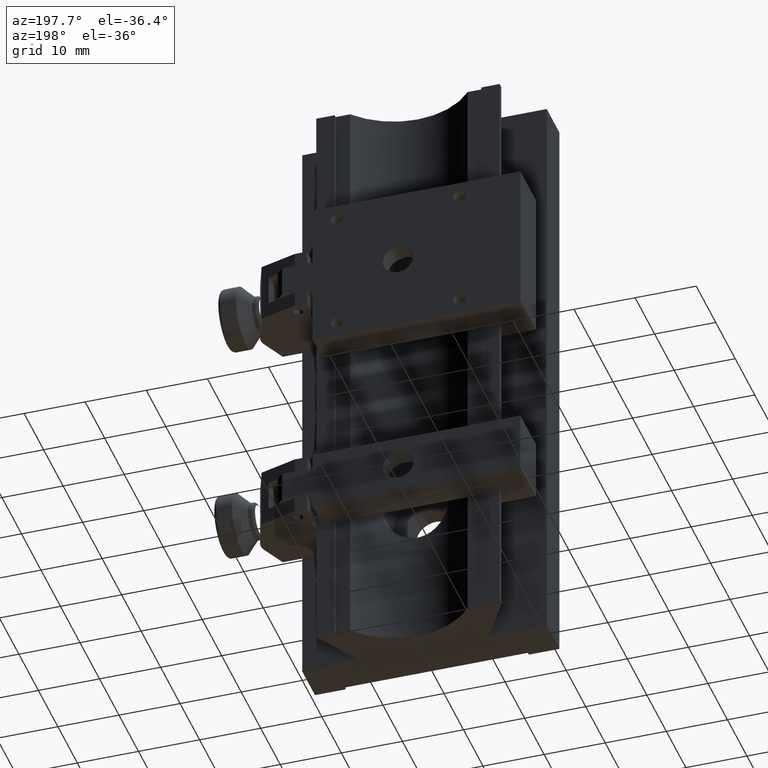
[diagram: clean part render]
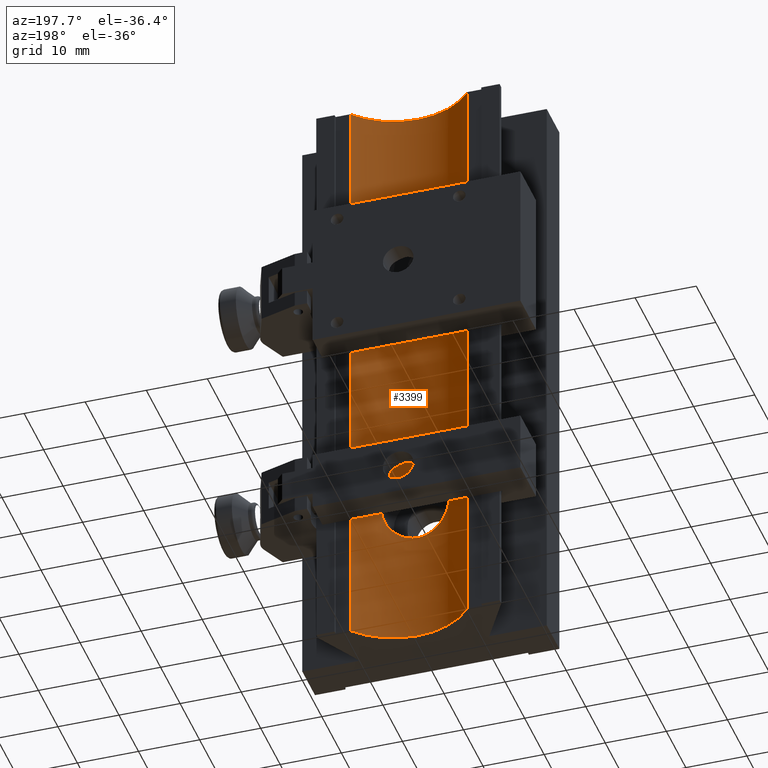
[diagram: same view with one face highlighted and labeled with its STEP entity id]
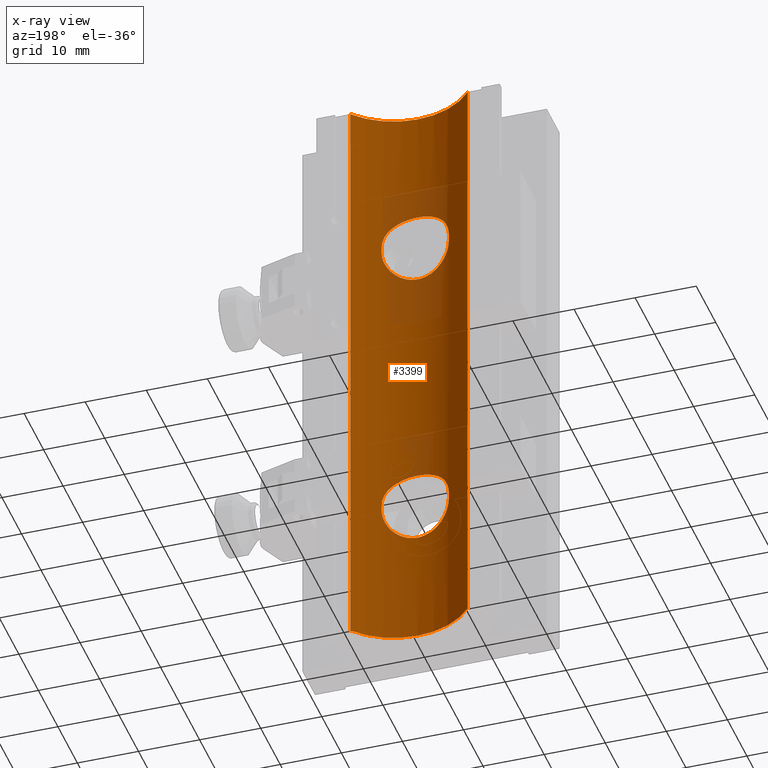
[diagram: x-ray of the same camera — body ghosted, the highlighted face saturated]
A machine part, auxiliary view. The second image highlights one B-rep face of the part: STEP entity #3399.
The next image is the same camera in x-ray: the body ghosted, the highlighted face saturated — about 10% of this face is hidden behind the body in this view.
In plain terms, the highlighted cylindrical surface (partial cylindrical patch) has radius 12.5 mm, axis along (-0, 0, -1).
Its self-contained STEP definition (entity closure, byte-faithful):
#72 = CARTESIAN_POINT ( 'NONE',  ( -3.638581638029508625, 4.038379994050425026, 29.63962776027644352 ) ) ;
#103 = CARTESIAN_POINT ( 'NONE',  ( -0.3589657864649583030, 3.503822942303211452, 30.99132986223215980 ) ) ;
#108 = DIRECTION ( 'NONE',  ( -0.000000000000000000, 0.000000000000000000, -1.000000000000000000 ) ) ;
#155 = B_SPLINE_CURVE_WITH_KNOTS ( 'NONE', 3,
 ( #2624, #627, #4771, #4720, #3468, #4261, #1467, #3442, #573, #3107, #2257, #275, #1923, #1492, #4317, #3911, #5087, #2730, #3495, #4748, #3131, #1896, #2283, #675, #227, #1002, #202, #1412, #5113, #1060, #2226, #3547, #3856, #650, #4289, #172, #601, #5189, #1814, #3050, #1435, #2654 ),
 .UNSPECIFIED., .F., .F.,
 ( 4, 2, 2, 2, 2, 2, 2, 2, 2, 2, 2, 2, 2, 2, 2, 2, 2, 2, 2, 2, 4 ),
 ( 0.000000000000000000, 0.001088223458269297218, 0.002176446916538594435, 0.003264670374807891219, 0.003808782103942534841, 0.004352893833077178462, 0.005441117291346471777, 0.006529340749615765091, 0.007073452478750410014, 0.007617564207885054069, 0.008705787666154344781, 0.009249899395288989704, 0.009794011124423634626, 0.01088223458269292274, 0.01197045804096221258, 0.01305868149923150243, 0.01414690495750079227, 0.01469101668663544066, 0.01523512841577008732, 0.01632335187403939625, 0.01741157533230869997 ),
 .UNSPECIFIED. ) ;
#157 = CARTESIAN_POINT ( 'NONE',  ( 1.960439013360201432, 3.653553443696079039, 30.64185918289807731 ) ) ;
#167 = DIRECTION ( 'NONE',  ( -0.000000000000000000, 0.000000000000000000, -1.000000000000000000 ) ) ;
#172 = CARTESIAN_POINT ( 'NONE',  ( 4.927301002126864837, 4.511737245493965709, 22.04974520197357535 ) ) ;
#186 = CARTESIAN_POINT ( 'NONE',  ( -0.7235754915566964263, 3.519625967096240426, 30.95527255045187331 ) ) ;
#202 = CARTESIAN_POINT ( 'NONE',  ( 1.783197991779767122, 3.623181025438775293, 19.28445996368880699 ) ) ;
#227 = CARTESIAN_POINT ( 'NONE',  ( 0.9034421561682072221, 3.531417676067726052, 19.07168773959777042 ) ) ;
#238 = CARTESIAN_POINT ( 'NONE',  ( -1.436019803944293960, 3.577646812477410343, -19.17844251871877859 ) ) ;
#275 = CARTESIAN_POINT ( 'NONE',  ( -3.640810629803838960, 4.039074654214517501, 20.36240765947393783 ) ) ;
#278 = EDGE_CURVE ( 'NONE', #648, #3293, #937, .T. ) ;
#288 = CARTESIAN_POINT ( 'NONE',  ( 4.015897234029105256, 4.161930955679303601, -20.73783805368037036 ) ) ;
#306 = ORIENTED_EDGE ( 'NONE', *, *, #5135, .F. ) ;
#309 = CARTESIAN_POINT ( 'NONE',  ( -1.791243918881801456, 3.627770058525934260, -30.70330787231333858 ) ) ;
#312 = CARTESIAN_POINT ( 'NONE',  ( 5.463371493397493950, 4.756877311680621112, -23.77044881776215846 ) ) ;
#360 = CARTESIAN_POINT ( 'NONE',  ( 3.359488323669842291, 3.956037097100741473, -29.86930765414052047 ) ) ;
#417 = VERTEX_POINT ( 'NONE', #1834 ) ;
#442 = EDGE_CURVE ( 'NONE', #2108, #4345, #5130, .T. ) ;
#504 = CARTESIAN_POINT ( 'NONE',  ( -5.004172744658501593, 4.545134261420410660, 27.78913355057161993 ) ) ;
#510 = CARTESIAN_POINT ( 'NONE',  ( 5.500000000000003553, 4.775027839678177344, 50.00000000000000000 ) ) ;
#557 = CARTESIAN_POINT ( 'NONE',  ( 3.365233826132079997, 3.957591329563105109, 29.86508588889130067 ) ) ;
#573 = CARTESIAN_POINT ( 'NONE',  ( -4.360951971730209209, 4.284773272989581550, 21.14384853326597735 ) ) ;
#586 = CARTESIAN_POINT ( 'NONE',  ( 5.463371493397493062, 4.756877311680621112, 26.22955118223783444 ) ) ;
#595 = EDGE_CURVE ( 'NONE', #1472, #3293, #5004, .T. ) ;
#601 = CARTESIAN_POINT ( 'NONE',  ( 5.004172744658499816, 4.545134261420410660, 22.21086644942838717 ) ) ;
#613 = CARTESIAN_POINT ( 'NONE',  ( -4.927301002126864837, 4.511737245493969262, -22.04974520197357890 ) ) ;
#627 = CARTESIAN_POINT ( 'NONE',  ( -5.499999999999999112, 4.775027839678173791, 24.13160073678131567 ) ) ;
#637 = CARTESIAN_POINT ( 'NONE',  ( 5.500000000000000000, 4.775027839678174679, -24.13160073678131567 ) ) ;
#648 = VERTEX_POINT ( 'NONE', #809 ) ;
#650 = CARTESIAN_POINT ( 'NONE',  ( 4.664130054569970874, 4.402269544413255353, 21.57975994278029575 ) ) ;
#660 = CARTESIAN_POINT ( 'NONE',  ( 1.960439013360197880, 3.653553443696079039, -19.35814081710192980 ) ) ;
#669 = AXIS2_PLACEMENT_3D ( 'NONE', #2530, #961, #2123 ) ;
#675 = CARTESIAN_POINT ( 'NONE',  ( 0.7235754915566973144, 3.519625967096240871, 19.04472744954814800 ) ) ;
#690 = CARTESIAN_POINT ( 'NONE',  ( -5.499999999999984013, 4.775027839678166686, 50.00000000000000000 ) ) ;
#698 = CARTESIAN_POINT ( 'NONE',  ( 5.499999999999998224, 4.775027839678173791, 24.50000000000000000 ) ) ;
#711 = CARTESIAN_POINT ( 'NONE',  ( 5.320886567516185828, 4.688748875783184999, -23.06165402701616429 ) ) ;
#731 = CARTESIAN_POINT ( 'NONE',  ( 5.463268972524252476, 4.756815190711169095, -26.23288512969653397 ) ) ;
#753 = VECTOR ( 'NONE', #1840, 1000.000000000000000 ) ;
#756 = CARTESIAN_POINT ( 'NONE',  ( 1.783197991779767344, 3.623181025438775293, -30.71554003631120011 ) ) ;
#809 = CARTESIAN_POINT ( 'NONE',  ( -9.604686356149272797, 7.999999999999998224, 50.00000000000000000 ) ) ;
#852 = DIRECTION ( 'NONE',  ( -0.000000000000000000, 0.000000000000000000, -1.000000000000000000 ) ) ;
#881 = CARTESIAN_POINT ( 'NONE',  ( -5.500000000000000000, 4.775027839678177344, 25.86853593480275748 ) ) ;
#903 = CARTESIAN_POINT ( 'NONE',  ( -5.211065515426132499, 4.637008669236494462, 27.29507806985633422 ) ) ;
#937 = LINE ( 'NONE', #4535, #5131 ) ;
#961 = DIRECTION ( 'NONE',  ( -0.000000000000000000, 0.000000000000000000, -1.000000000000000000 ) ) ;
#1002 = CARTESIAN_POINT ( 'NONE',  ( 1.436019803944290629, 3.577646812477411675, 19.17844251871877148 ) ) ;
#1017 = CARTESIAN_POINT ( 'NONE',  ( -3.359488323669839627, 3.956037097100740585, -20.13069234585947598 ) ) ;
#1045 = CARTESIAN_POINT ( 'NONE',  ( 4.468409719719221407, 4.325465594975087313, -21.28826126659803109 ) ) ;
#1060 = CARTESIAN_POINT ( 'NONE',  ( 3.359488323669842291, 3.956037097100741473, 20.13069234585948664 ) ) ;
#1089 = CARTESIAN_POINT ( 'NONE',  ( 5.211065515426132499, 4.637008669236493574, -27.29507806985633067 ) ) ;
#1093 = CARTESIAN_POINT ( 'NONE',  ( 4.935953207741839321, 4.514820086043212832, -22.04735380139051770 ) ) ;
#1112 = CARTESIAN_POINT ( 'NONE',  ( 5.004172744658500704, 4.545134261420409771, -27.78913355057161638 ) ) ;
#1136 = CARTESIAN_POINT ( 'NONE',  ( -4.360951971730208321, 4.284773272989580661, -28.85615146673403331 ) ) ;
#1158 = CARTESIAN_POINT ( 'NONE',  ( 3.638581638029509513, 4.038379994050421473, -29.63962776027644352 ) ) ;
#1189 = CARTESIAN_POINT ( 'NONE',  ( -4.767077514528522464, 4.442719698820008389, -28.26636520187405210 ) ) ;
#1215 = ORIENTED_EDGE ( 'NONE', *, *, #278, .F. ) ;
#1286 = CARTESIAN_POINT ( 'NONE',  ( 0.7318247305610905418, 3.516321624483725206, 30.96318792152190369 ) ) ;
#1314 = CARTESIAN_POINT ( 'NONE',  ( 4.134927261176861712, 4.203101428351041058, 29.13098214153897914 ) ) ;
#1371 = CARTESIAN_POINT ( 'NONE',  ( -3.359488323669839627, 3.956037097100741473, 29.86930765414053113 ) ) ;
#1398 = CARTESIAN_POINT ( 'NONE',  ( -0.1746818680405358426, 3.499893860054750672, 31.00024122732796883 ) ) ;
#1412 = CARTESIAN_POINT ( 'NONE',  ( 2.452909808896964527, 3.738324891094071845, 19.56391993402969121 ) ) ;
#1415 = ORIENTED_EDGE ( 'NONE', *, *, #595, .T. ) ;
#1435 = CARTESIAN_POINT ( 'NONE',  ( 5.499999999999998224, 4.775027839678175567, 24.13146406519726028 ) ) ;
#1467 = CARTESIAN_POINT ( 'NONE',  ( -4.767077514528522464, 4.442719698820008389, 21.73363479812595500 ) ) ;
#1472 = VERTEX_POINT ( 'NONE', #3988 ) ;
#1481 = CARTESIAN_POINT ( 'NONE',  ( -5.211065515426132499, 4.637008669236496239, -22.70492193014367643 ) ) ;
#1492 = CARTESIAN_POINT ( 'NONE',  ( -2.769513885777389994, 3.806797052175194818, 19.73464939816306085 ) ) ;
#1501 = CARTESIAN_POINT ( 'NONE',  ( 4.664130054569974426, 4.402269544413256241, -28.42024005721969715 ) ) ;
#1521 = CARTESIAN_POINT ( 'NONE',  ( 0.7235754915566967593, 3.519625967096240426, -30.95527255045186266 ) ) ;
#1525 = CARTESIAN_POINT ( 'NONE',  ( -5.463268972524252476, 4.756815190711169095, -23.76711487030347314 ) ) ;
#1546 = CARTESIAN_POINT ( 'NONE',  ( -2.769513885777390438, 3.806797052175196594, -30.26535060183694981 ) ) ;
#1569 = CARTESIAN_POINT ( 'NONE',  ( -2.455686713790327769, 3.739010744038294476, -30.43434399805540380 ) ) ;
#1592 = CARTESIAN_POINT ( 'NONE',  ( -1.960439013360200988, 3.653553443696078151, -30.64185918289807375 ) ) ;
#1713 = ORIENTED_EDGE ( 'NONE', *, *, #2633, .F. ) ;
#1715 = FACE_OUTER_BOUND ( 'NONE', #1759, .T. ) ;
#1744 = CARTESIAN_POINT ( 'NONE',  ( 3.640810629803843401, 4.039074654214519278, 29.63759234052605862 ) ) ;
#1759 = EDGE_LOOP ( 'NONE', ( #3986, #1415, #1215, #306 ) ) ;
#1773 = CARTESIAN_POINT ( 'NONE',  ( 2.769513885777389550, 3.806797052175195706, 30.26535060183694270 ) ) ;
#1801 = CARTESIAN_POINT ( 'NONE',  ( 1.444167463114246708, 3.582471709711287033, 30.81011750618489131 ) ) ;
#1804 = B_SPLINE_CURVE_WITH_KNOTS ( 'NONE', 3,
 ( #4220, #3753, #586, #4990, #3870, #4245, #4562, #3785, #4273, #1314, #4187, #1744, #557, #1773, #3841, #157, #5042, #1801, #3377, #1286, #2586, #1398, #103, #186, #4586, #2954, #2927, #2638, #3402, #1371, #72, #2979, #1830, #2152, #4616, #4645, #504, #903, #2555, #4963, #881, #5016 ),
 .UNSPECIFIED., .F., .F.,
 ( 4, 2, 2, 2, 2, 2, 2, 2, 2, 2, 2, 2, 2, 2, 2, 2, 2, 2, 2, 2, 4 ),
 ( 0.000000000000000000, 0.001088223458269308493, 0.002176446916538616987, 0.003264670374807925480, 0.003808782103942574739, 0.004352893833077224432, 0.005441117291346515145, 0.006529340749615806724, 0.007073452478750452514, 0.007617564207885097437, 0.008705787666154388149, 0.009249899395289033072, 0.009794011124423677994, 0.01088223458269296784, 0.01197045804096225768, 0.01305868149923154753, 0.01414690495750083737, 0.01469101668663547883, 0.01523512841577011681, 0.01632335187403940666, 0.01741157533230869650 ),
 .UNSPECIFIED. ) ;
#1814 = CARTESIAN_POINT ( 'NONE',  ( 5.317647263843143790, 4.687213424654787630, 23.04842979611111886 ) ) ;
#1830 = CARTESIAN_POINT ( 'NONE',  ( -4.365141366191278571, 4.284993196813135619, 28.86499412839005174 ) ) ;
#1834 = CARTESIAN_POINT ( 'NONE',  ( 9.604686356149276349, 8.000000000000001776, 50.00000000000000000 ) ) ;
#1840 = DIRECTION ( 'NONE',  ( -0.000000000000000000, 0.000000000000000000, -1.000000000000000000 ) ) ;
#1855 = CARTESIAN_POINT ( 'NONE',  ( -5.004172744658499816, 4.545134261420411548, -22.21086644942838362 ) ) ;
#1857 = VECTOR ( 'NONE', #108, 1000.000000000000000 ) ;
#1886 = CARTESIAN_POINT ( 'NONE',  ( -4.365141366191279459, 4.284993196813132954, -21.13500587160995181 ) ) ;
#1892 = DIRECTION ( 'NONE',  ( -0.000000000000000000, 0.000000000000000000, -1.000000000000000000 ) ) ;
#1896 = CARTESIAN_POINT ( 'NONE',  ( 0.1746818680405369528, 3.499893860054751560, 18.99975877267203472 ) ) ;
#1911 = CARTESIAN_POINT ( 'NONE',  ( 1.791243918881799457, 3.627770058525935148, -19.29669212768666497 ) ) ;
#1923 = CARTESIAN_POINT ( 'NONE',  ( -3.365233826132080885, 3.957591329563105109, 20.13491411110870999 ) ) ;
#1952 = CARTESIAN_POINT ( 'NONE',  ( 0.1746818680405355095, 3.499893860054750228, -31.00024122732797238 ) ) ;
#1981 = CARTESIAN_POINT ( 'NONE',  ( 2.452909808896963639, 3.738324891094071845, -30.43608006597031590 ) ) ;
#2006 = CARTESIAN_POINT ( 'NONE',  ( 4.140132957479336184, 4.202588055097333353, -29.13800679282629602 ) ) ;
#2013 = VERTEX_POINT ( 'NONE', #2691 ) ;
#2108 = VERTEX_POINT ( 'NONE', #2636 ) ;
#2123 = DIRECTION ( 'NONE',  ( 0.000000000000000000, 1.000000000000000000, 0.000000000000000000 ) ) ;
#2147 = EDGE_CURVE ( 'NONE', #2259, #4345, #4186, .T. ) ;
#2152 = CARTESIAN_POINT ( 'NONE',  ( -4.664130054569974426, 4.402269544413259794, 28.42024005721970070 ) ) ;
#2226 = CARTESIAN_POINT ( 'NONE',  ( 3.638581638029510845, 4.038379994050422361, 20.36037223972356713 ) ) ;
#2246 = DIRECTION ( 'NONE',  ( -0.000000000000000000, 0.000000000000000000, -1.000000000000000000 ) ) ;
#2257 = CARTESIAN_POINT ( 'NONE',  ( -4.015897234029105256, 4.161930955679303601, 20.73783805368036681 ) ) ;
#2259 = VERTEX_POINT ( 'NONE', #2490 ) ;
#2267 = AXIS2_PLACEMENT_3D ( 'NONE', #3071, #167, #4682 ) ;
#2272 = CARTESIAN_POINT ( 'NONE',  ( -0.9034421561682106638, 3.531417676067726052, -19.07168773959777397 ) ) ;
#2283 = CARTESIAN_POINT ( 'NONE',  ( 0.3589657864649593577, 3.503822942303210564, 19.00867013776785086 ) ) ;
#2292 = CARTESIAN_POINT ( 'NONE',  ( 0.7318247305610874331, 3.516321624483725650, -19.03681207847808921 ) ) ;
#2319 = CARTESIAN_POINT ( 'NONE',  ( -0.1746818680405375634, 3.499893860054749783, -18.99975877267203117 ) ) ;
#2334 = ORIENTED_EDGE ( 'NONE', *, *, #2147, .T. ) ;
#2337 = CARTESIAN_POINT ( 'NONE',  ( -4.468409719719221407, 4.325465594975087313, -28.71173873340199023 ) ) ;
#2343 = CIRCLE ( 'NONE', #2267, 12.50000000000000000 ) ;
#2359 = CARTESIAN_POINT ( 'NONE',  ( 5.499999999999999112, 4.775027839678175567, -25.50000000000000355 ) ) ;
#2364 = CARTESIAN_POINT ( 'NONE',  ( 4.360951971730209209, 4.284773272989581550, -21.14384853326597735 ) ) ;
#2384 = CARTESIAN_POINT ( 'NONE',  ( -5.320886567516184051, 4.688748875783183223, -26.93834597298383571 ) ) ;
#2438 = DIRECTION ( 'NONE',  ( 0.000000000000000000, -1.000000000000000000, 0.000000000000000000 ) ) ;
#2441 = B_SPLINE_CURVE_WITH_KNOTS ( 'NONE', 3,
 ( #3512, #637, #312, #711, #2765, #1093, #3455, #1045, #2364, #3993, #288, #3971, #3560, #5098, #3898, #660, #1911, #5202, #5156, #2292, #4304, #2319, #3480, #4329, #2272, #238, #3539, #3063, #4705, #1017, #2742, #3092, #1886, #2670, #3166, #613, #1855, #1481, #4761, #1525, #5125, #4806 ),
 .UNSPECIFIED., .F., .F.,
 ( 4, 2, 2, 2, 2, 2, 2, 2, 2, 2, 2, 2, 2, 2, 2, 2, 2, 2, 2, 2, 4 ),
 ( 0.000000000000000000, 0.001088223458269302639, 0.002176446916538605277, 0.003264670374807908133, 0.003808782103942554790, 0.004352893833077201013, 0.005441117291346499532, 0.006529340749615798051, 0.007073452478750446443, 0.007617564207885093967, 0.008705787666154388149, 0.009249899395289034806, 0.009794011124423684933, 0.01088223458269297825, 0.01197045804096227330, 0.01305868149923156835, 0.01414690495750086340, 0.01469101668663550485, 0.01523512841577014804, 0.01632335187403942400, 0.01741157533230869997 ),
 .UNSPECIFIED. ) ;
#2471 = FACE_BOUND ( 'NONE', #3393, .T. ) ;
#2490 = CARTESIAN_POINT ( 'NONE',  ( -5.499999999999998224, 4.775027839678173791, -25.50000000000000355 ) ) ;
#2517 = ORIENTED_EDGE ( 'NONE', *, *, #4819, .T. ) ;
#2530 = CARTESIAN_POINT ( 'NONE',  ( -2.407148620655123076E-16, 16.00000000000000000, 50.00000000000000000 ) ) ;
#2555 = CARTESIAN_POINT ( 'NONE',  ( -5.317647263843144678, 4.687213424654789407, 26.95157020388888469 ) ) ;
#2586 = CARTESIAN_POINT ( 'NONE',  ( 0.3716744979042014840, 3.500218916825643678, 30.99950246139496102 ) ) ;
#2608 = CARTESIAN_POINT ( 'NONE',  ( 5.499999999999999112, 4.775027839678175567, 25.50000000000000355 ) ) ;
#2624 = CARTESIAN_POINT ( 'NONE',  ( -5.499999999999998224, 4.775027839678173791, 24.50000000000000000 ) ) ;
#2633 = EDGE_CURVE ( 'NONE', #4576, #4922, #4652, .T. ) ;
#2636 = CARTESIAN_POINT ( 'NONE',  ( 5.499999999999999112, 4.775027839678175567, -24.50000000000000000 ) ) ;
#2638 = CARTESIAN_POINT ( 'NONE',  ( -2.452909808896963195, 3.738324891094071400, 30.43608006597032301 ) ) ;
#2654 = CARTESIAN_POINT ( 'NONE',  ( 5.499999999999998224, 4.775027839678173791, 24.50000000000000000 ) ) ;
#2670 = CARTESIAN_POINT ( 'NONE',  ( -4.664130054569973538, 4.402269544413257130, -21.57975994278030640 ) ) ;
#2691 = CARTESIAN_POINT ( 'NONE',  ( -5.499999999999998224, 4.775027839678173791, -24.50000000000000000 ) ) ;
#2730 = CARTESIAN_POINT ( 'NONE',  ( -1.444167463114245820, 3.582471709711285257, 19.18988249381511935 ) ) ;
#2742 = CARTESIAN_POINT ( 'NONE',  ( -3.638581638029509513, 4.038379994050425026, -20.36037223972356358 ) ) ;
#2765 = CARTESIAN_POINT ( 'NONE',  ( 5.213099869976741907, 4.637932341751265675, -22.71039188920618557 ) ) ;
#2783 = CARTESIAN_POINT ( 'NONE',  ( 4.757545737347821380, 4.440405074606874614, -28.26546601820661309 ) ) ;
#2845 = EDGE_CURVE ( 'NONE', #1472, #417, #4058, .T. ) ;
#2872 = VECTOR ( 'NONE', #4140, 1000.000000000000000 ) ;
#2927 = CARTESIAN_POINT ( 'NONE',  ( -1.783197991779766012, 3.623181025438774849, 30.71554003631120011 ) ) ;
#2954 = CARTESIAN_POINT ( 'NONE',  ( -1.436019803944291517, 3.577646812477409899, 30.82155748128122852 ) ) ;
#2979 = CARTESIAN_POINT ( 'NONE',  ( -4.140132957479336184, 4.202588055097336905, 29.13800679282629957 ) ) ;
#3049 = ORIENTED_EDGE ( 'NONE', *, *, #3404, .T. ) ;
#3050 = CARTESIAN_POINT ( 'NONE',  ( 5.463268972524252476, 4.756815190711167318, 23.76711487030346959 ) ) ;
#3063 = CARTESIAN_POINT ( 'NONE',  ( -2.452909808896967192, 3.738324891094073177, -19.56391993402969121 ) ) ;
#3068 = ORIENTED_EDGE ( 'NONE', *, *, #3173, .T. ) ;
#3071 = CARTESIAN_POINT ( 'NONE',  ( -2.407148620655123076E-16, 16.00000000000000000, 50.00000000000000000 ) ) ;
#3089 = CARTESIAN_POINT ( 'NONE',  ( -5.499999999999998224, 4.775027839678173791, -25.50000000000000355 ) ) ;
#3092 = CARTESIAN_POINT ( 'NONE',  ( -4.140132957479336184, 4.202588055097337794, -20.86199320717370753 ) ) ;
#3107 = CARTESIAN_POINT ( 'NONE',  ( -4.134927261176860824, 4.203101428351041946, 20.86901785846101376 ) ) ;
#3131 = CARTESIAN_POINT ( 'NONE',  ( -0.3716744979042007069, 3.500218916825643678, 19.00049753860503543 ) ) ;
#3139 = CARTESIAN_POINT ( 'NONE',  ( -5.499999999999998224, 4.775027839678173791, -25.86839926321869854 ) ) ;
#3160 = CARTESIAN_POINT ( 'NONE',  ( 5.317647263843144678, 4.687213424654789407, -26.95157020388889180 ) ) ;
#3166 = CARTESIAN_POINT ( 'NONE',  ( -4.757545737347821380, 4.440405074606873725, -21.73453398179339757 ) ) ;
#3173 = EDGE_CURVE ( 'NONE', #2013, #2259, #4767, .T. ) ;
#3184 = CARTESIAN_POINT ( 'NONE',  ( 1.436019803944290851, 3.577646812477410787, -30.82155748128122497 ) ) ;
#3208 = CARTESIAN_POINT ( 'NONE',  ( -5.213099869976741019, 4.637932341751264786, -27.28960811079381443 ) ) ;
#3215 = CARTESIAN_POINT ( 'NONE',  ( 5.499999999999999112, 4.775027839678175567, -25.50000000000000355 ) ) ;
#3225 = EDGE_LOOP ( 'NONE', ( #1713, #3049, #4950, #2517 ) ) ;
#3228 = CARTESIAN_POINT ( 'NONE',  ( -5.463371493397493950, 4.756877311680621112, -26.22955118223783799 ) ) ;
#3293 = VERTEX_POINT ( 'NONE', #4022 ) ;
#3351 = CYLINDRICAL_SURFACE ( 'NONE', #669, 12.50000000000000000 ) ;
#3377 = CARTESIAN_POINT ( 'NONE',  ( 1.266012518167692003, 3.562992296828747740, 30.85539071678002898 ) ) ;
#3388 = LINE ( 'NONE', #3853, #753 ) ;
#3393 = EDGE_LOOP ( 'NONE', ( #3068, #2334, #3689, #4895 ) ) ;
#3399 = ADVANCED_FACE ( 'NONE', ( #2471, #5071, #1715 ), #3351, .F. ) ;
#3402 = CARTESIAN_POINT ( 'NONE',  ( -2.767522286145573052, 3.806394110068379355, 30.26632264634829284 ) ) ;
#3404 = EDGE_CURVE ( 'NONE', #4576, #3777, #1804, .T. ) ;
#3442 = CARTESIAN_POINT ( 'NONE',  ( -4.468409719719221407, 4.325465594975086425, 21.28826126659802753 ) ) ;
#3455 = CARTESIAN_POINT ( 'NONE',  ( 4.767077514528521576, 4.442719698820007501, -21.73363479812595145 ) ) ;
#3467 = EDGE_CURVE ( 'NONE', #2108, #2013, #2441, .T. ) ;
#3468 = CARTESIAN_POINT ( 'NONE',  ( -5.213099869976741907, 4.637932341751265675, 22.71039188920618912 ) ) ;
#3480 = CARTESIAN_POINT ( 'NONE',  ( -0.3589657864649608010, 3.503822942303211008, -19.00867013776785086 ) ) ;
#3495 = CARTESIAN_POINT ( 'NONE',  ( -1.266012518167690226, 3.562992296828745964, 19.14460928321997812 ) ) ;
#3512 = CARTESIAN_POINT ( 'NONE',  ( 5.499999999999999112, 4.775027839678175567, -24.50000000000000000 ) ) ;
#3539 = CARTESIAN_POINT ( 'NONE',  ( -1.783197991779770231, 3.623181025438776182, -19.28445996368880699 ) ) ;
#3547 = CARTESIAN_POINT ( 'NONE',  ( 4.140132957479338849, 4.202588055097336017, 20.86199320717371108 ) ) ;
#3556 = CARTESIAN_POINT ( 'NONE',  ( -4.015897234029106144, 4.161930955679303601, -29.26216194631963319 ) ) ;
#3560 = CARTESIAN_POINT ( 'NONE',  ( 3.365233826132079997, 3.957591329563104221, -20.13491411110870644 ) ) ;
#3581 = CARTESIAN_POINT ( 'NONE',  ( -0.3716744979042014840, 3.500218916825643678, -30.99950246139496102 ) ) ;
#3647 = CARTESIAN_POINT ( 'NONE',  ( 9.604686356149276349, 8.000000000000001776, 50.00000000000000000 ) ) ;
#3689 = ORIENTED_EDGE ( 'NONE', *, *, #442, .F. ) ;
#3753 = CARTESIAN_POINT ( 'NONE',  ( 5.499999999999998224, 4.775027839678173791, 25.86839926321869854 ) ) ;
#3777 = VERTEX_POINT ( 'NONE', #4407 ) ;
#3783 = VERTEX_POINT ( 'NONE', #3865 ) ;
#3785 = CARTESIAN_POINT ( 'NONE',  ( 4.468409719719221407, 4.325465594975087313, 28.71173873340199023 ) ) ;
#3808 = AXIS2_PLACEMENT_3D ( 'NONE', #4550, #4954, #2438 ) ;
#3841 = CARTESIAN_POINT ( 'NONE',  ( 2.455686713790328213, 3.739010744038294032, 30.43434399805540025 ) ) ;
#3853 = CARTESIAN_POINT ( 'NONE',  ( -5.499999999999993783, 4.775027839678172015, 50.00000000000000000 ) ) ;
#3856 = CARTESIAN_POINT ( 'NONE',  ( 4.365141366191277683, 4.284993196813133842, 21.13500587160995536 ) ) ;
#3865 = CARTESIAN_POINT ( 'NONE',  ( -5.499999999999998224, 4.775027839678173791, 24.50000000000000000 ) ) ;
#3870 = CARTESIAN_POINT ( 'NONE',  ( 5.213099869976741907, 4.637932341751265675, 27.28960811079382154 ) ) ;
#3898 = CARTESIAN_POINT ( 'NONE',  ( 2.455686713790325104, 3.739010744038295808, -19.56565600194459265 ) ) ;
#3902 = CARTESIAN_POINT ( 'NONE',  ( 5.500000000000012434, 4.775027839678180896, 50.00000000000000000 ) ) ;
#3911 = CARTESIAN_POINT ( 'NONE',  ( -1.960439013360197880, 3.653553443696079039, 19.35814081710192980 ) ) ;
#3967 = CARTESIAN_POINT ( 'NONE',  ( -3.365233826132080441, 3.957591329563105109, -29.86508588889130067 ) ) ;
#3971 = CARTESIAN_POINT ( 'NONE',  ( 3.640810629803839849, 4.039074654214518389, -20.36240765947394138 ) ) ;
#3986 = ORIENTED_EDGE ( 'NONE', *, *, #2845, .F. ) ;
#3987 = VECTOR ( 'NONE', #1892, 1000.000000000000000 ) ;
#3988 = CARTESIAN_POINT ( 'NONE',  ( 9.604686356149276349, 8.000000000000001776, -50.00000000000000000 ) ) ;
#3989 = CARTESIAN_POINT ( 'NONE',  ( -4.134927261176861712, 4.203101428351041058, -29.13098214153898979 ) ) ;
#3993 = CARTESIAN_POINT ( 'NONE',  ( 4.134927261176861712, 4.203101428351042834, -20.86901785846102086 ) ) ;
#4014 = CARTESIAN_POINT ( 'NONE',  ( -1.266012518167691114, 3.562992296828745520, -30.85539071678002188 ) ) ;
#4022 = CARTESIAN_POINT ( 'NONE',  ( -9.604686356149272797, 7.999999999999998224, -50.00000000000000000 ) ) ;
#4040 = CARTESIAN_POINT ( 'NONE',  ( 2.767522286145575716, 3.806394110068378911, -30.26632264634828573 ) ) ;
#4058 = LINE ( 'NONE', #3647, #2872 ) ;
#4081 = EDGE_CURVE ( 'NONE', #3777, #3783, #3388, .T. ) ;
#4140 = DIRECTION ( 'NONE',  ( 0.000000000000000000, -0.000000000000000000, 1.000000000000000000 ) ) ;
#4186 = B_SPLINE_CURVE_WITH_KNOTS ( 'NONE', 3,
 ( #3089, #3139, #3228, #2384, #3208, #4849, #1189, #2337, #1136, #3989, #3556, #5249, #3967, #1546, #1569, #1592, #309, #5225, #4014, #4782, #3581, #1952, #4469, #1521, #4392, #3184, #756, #1981, #4040, #360, #1158, #2006, #4828, #1501, #2783, #4413, #1112, #1089, #3160, #731, #4803, #2359 ),
 .UNSPECIFIED., .F., .F.,
 ( 4, 2, 2, 2, 2, 2, 2, 2, 2, 2, 2, 2, 2, 2, 2, 2, 2, 2, 2, 2, 4 ),
 ( 0.000000000000000000, 0.001088223458269308276, 0.002176446916538616553, 0.003264670374807925046, 0.003808782103942574306, 0.004352893833077223565, 0.005441117291346514277, 0.006529340749615804990, 0.007073452478750450780, 0.007617564207885096569, 0.008705787666154384680, 0.009249899395289031337, 0.009794011124423676259, 0.01088223458269296437, 0.01197045804096225421, 0.01305868149923154406, 0.01414690495750083564, 0.01469101668663547536, 0.01523512841577011681, 0.01632335187403940666, 0.01741157533230869650 ),
 .UNSPECIFIED. ) ;
#4187 = CARTESIAN_POINT ( 'NONE',  ( 4.015897234029106144, 4.161930955679304489, 29.26216194631963674 ) ) ;
#4220 = CARTESIAN_POINT ( 'NONE',  ( 5.499999999999999112, 4.775027839678175567, 25.50000000000000355 ) ) ;
#4245 = CARTESIAN_POINT ( 'NONE',  ( 4.935953207741839321, 4.514820086043211944, 27.95264619860948585 ) ) ;
#4261 = CARTESIAN_POINT ( 'NONE',  ( -4.935953207741839321, 4.514820086043211944, 22.04735380139051415 ) ) ;
#4273 = CARTESIAN_POINT ( 'NONE',  ( 4.360951971730208321, 4.284773272989580661, 28.85615146673403331 ) ) ;
#4289 = CARTESIAN_POINT ( 'NONE',  ( 4.757545737347819603, 4.440405074606872837, 21.73453398179339402 ) ) ;
#4304 = CARTESIAN_POINT ( 'NONE',  ( 0.3716744979041987640, 3.500218916825642790, -19.00049753860503188 ) ) ;
#4317 = CARTESIAN_POINT ( 'NONE',  ( -2.455686713790324216, 3.739010744038294032, 19.56565600194458199 ) ) ;
#4329 = CARTESIAN_POINT ( 'NONE',  ( -0.7235754915566975365, 3.519625967096238206, -19.04472744954814090 ) ) ;
#4345 = VERTEX_POINT ( 'NONE', #3215 ) ;
#4392 = CARTESIAN_POINT ( 'NONE',  ( 0.9034421561682072221, 3.531417676067726497, -30.92831226040224379 ) ) ;
#4407 = CARTESIAN_POINT ( 'NONE',  ( -5.499999999999998224, 4.775027839678173791, 25.50000000000000355 ) ) ;
#4413 = CARTESIAN_POINT ( 'NONE',  ( 4.927301002126865725, 4.511737245493971038, -27.95025479802643176 ) ) ;
#4469 = CARTESIAN_POINT ( 'NONE',  ( 0.3589657864649591357, 3.503822942303210564, -30.99132986223215624 ) ) ;
#4535 = CARTESIAN_POINT ( 'NONE',  ( -9.604686356149272797, 7.999999999999998224, 50.00000000000000000 ) ) ;
#4550 = CARTESIAN_POINT ( 'NONE',  ( -2.407148620655123076E-16, 16.00000000000000000, -50.00000000000000000 ) ) ;
#4562 = CARTESIAN_POINT ( 'NONE',  ( 4.767077514528521576, 4.442719698820007501, 28.26636520187405210 ) ) ;
#4576 = VERTEX_POINT ( 'NONE', #2608 ) ;
#4586 = CARTESIAN_POINT ( 'NONE',  ( -0.9034421561682065560, 3.531417676067723832, 30.92831226040224379 ) ) ;
#4616 = CARTESIAN_POINT ( 'NONE',  ( -4.757545737347823156, 4.440405074606872837, 28.26546601820660243 ) ) ;
#4645 = CARTESIAN_POINT ( 'NONE',  ( -4.927301002126866614, 4.511737245493968373, 27.95025479802642465 ) ) ;
#4652 = LINE ( 'NONE', #510, #1857 ) ;
#4682 = DIRECTION ( 'NONE',  ( 0.000000000000000000, -1.000000000000000000, 0.000000000000000000 ) ) ;
#4705 = CARTESIAN_POINT ( 'NONE',  ( -2.767522286145575272, 3.806394110068379355, -19.73367735365172138 ) ) ;
#4720 = CARTESIAN_POINT ( 'NONE',  ( -5.320886567516186716, 4.688748875783185888, 23.06165402701616074 ) ) ;
#4748 = CARTESIAN_POINT ( 'NONE',  ( -0.7318247305610876552, 3.516321624483726094, 19.03681207847809276 ) ) ;
#4761 = CARTESIAN_POINT ( 'NONE',  ( -5.317647263843143790, 4.687213424654788518, -23.04842979611111886 ) ) ;
#4767 = LINE ( 'NONE', #690, #3987 ) ;
#4771 = CARTESIAN_POINT ( 'NONE',  ( -5.463371493397494838, 4.756877311680621112, 23.77044881776215490 ) ) ;
#4782 = CARTESIAN_POINT ( 'NONE',  ( -0.7318247305610905418, 3.516321624483725650, -30.96318792152191079 ) ) ;
#4803 = CARTESIAN_POINT ( 'NONE',  ( 5.500000000000000000, 4.775027839678174679, -25.86853593480275748 ) ) ;
#4806 = CARTESIAN_POINT ( 'NONE',  ( -5.499999999999998224, 4.775027839678173791, -24.50000000000000000 ) ) ;
#4819 = EDGE_CURVE ( 'NONE', #3783, #4922, #155, .T. ) ;
#4828 = CARTESIAN_POINT ( 'NONE',  ( 4.365141366191279459, 4.284993196813132954, -28.86499412839005174 ) ) ;
#4849 = CARTESIAN_POINT ( 'NONE',  ( -4.935953207741839321, 4.514820086043211944, -27.95264619860948585 ) ) ;
#4875 = VECTOR ( 'NONE', #2246, 1000.000000000000000 ) ;
#4895 = ORIENTED_EDGE ( 'NONE', *, *, #3467, .T. ) ;
#4922 = VERTEX_POINT ( 'NONE', #698 ) ;
#4950 = ORIENTED_EDGE ( 'NONE', *, *, #4081, .T. ) ;
#4954 = DIRECTION ( 'NONE',  ( -0.000000000000000000, 0.000000000000000000, -1.000000000000000000 ) ) ;
#4963 = CARTESIAN_POINT ( 'NONE',  ( -5.463268972524252476, 4.756815190711169983, 26.23288512969653397 ) ) ;
#4990 = CARTESIAN_POINT ( 'NONE',  ( 5.320886567516184940, 4.688748875783184999, 26.93834597298383926 ) ) ;
#5004 = CIRCLE ( 'NONE', #3808, 12.50000000000000000 ) ;
#5016 = CARTESIAN_POINT ( 'NONE',  ( -5.499999999999998224, 4.775027839678173791, 25.50000000000000355 ) ) ;
#5042 = CARTESIAN_POINT ( 'NONE',  ( 1.791243918881801234, 3.627770058525934704, 30.70330787231333858 ) ) ;
#5071 = FACE_BOUND ( 'NONE', #3225, .T. ) ;
#5087 = CARTESIAN_POINT ( 'NONE',  ( -1.791243918881800123, 3.627770058525933816, 19.29669212768666497 ) ) ;
#5098 = CARTESIAN_POINT ( 'NONE',  ( 2.769513885777390438, 3.806797052175195706, -19.73464939816306085 ) ) ;
#5113 = CARTESIAN_POINT ( 'NONE',  ( 2.767522286145575272, 3.806394110068379799, 19.73367735365172493 ) ) ;
#5125 = CARTESIAN_POINT ( 'NONE',  ( -5.499999999999998224, 4.775027839678174679, -24.13146406519726384 ) ) ;
#5130 = LINE ( 'NONE', #3902, #4875 ) ;
#5131 = VECTOR ( 'NONE', #852, 1000.000000000000000 ) ;
#5135 = EDGE_CURVE ( 'NONE', #417, #648, #2343, .T. ) ;
#5156 = CARTESIAN_POINT ( 'NONE',  ( 1.266012518167690448, 3.562992296828746852, -19.14460928321998168 ) ) ;
#5189 = CARTESIAN_POINT ( 'NONE',  ( 5.211065515426133388, 4.637008669236495351, 22.70492193014367643 ) ) ;
#5202 = CARTESIAN_POINT ( 'NONE',  ( 1.444167463114244931, 3.582471709711285257, -19.18988249381511935 ) ) ;
#5225 = CARTESIAN_POINT ( 'NONE',  ( -1.444167463114247374, 3.582471709711285257, -30.81011750618488421 ) ) ;
#5249 = CARTESIAN_POINT ( 'NONE',  ( -3.640810629803842513, 4.039074654214518389, -29.63759234052604796 ) ) ;